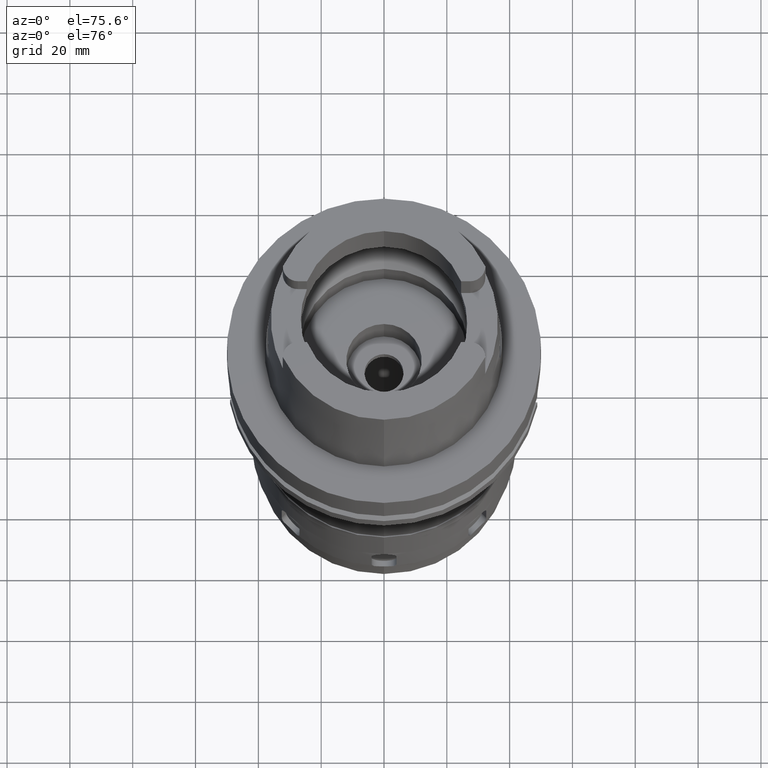
[diagram: clean part render]
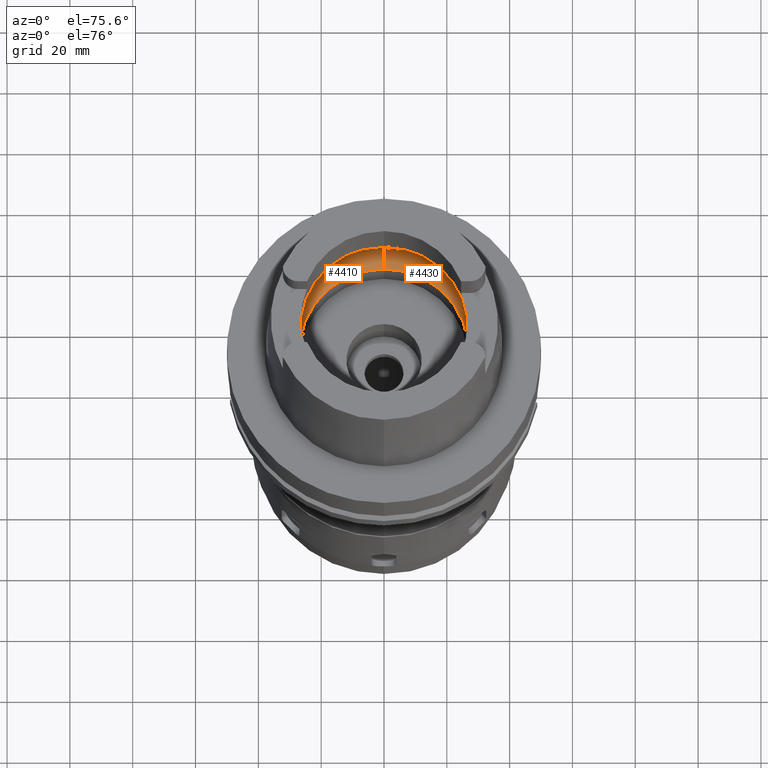
[diagram: same view with one multi-face feature highlighted, each face labeled with its STEP entity id]
A machine part, auxiliary view. The highlighted faces form ONE feature: a constant-radius fillet chain: 2 tangent blend faces with common blend radius 12 mm. The faces share edges in the B-rep.
Their STEP definitions:
[1] entity #4410 (Torus):
#558=CARTESIAN_POINT('',(-3.140918884336E1,-2.390158196044E0,9.496624327026E0));
#602=CARTESIAN_POINT('',(-3.140918884336E1,-2.390158196044E0,9.496624327026E0));
#603=CARTESIAN_POINT('',(-3.142817545704E1,-2.140654152533E0,9.388262810390E0));
#604=CARTESIAN_POINT('',(-3.145843235401E1,-1.626121130666E0,9.205188134635E0));
#605=CARTESIAN_POINT('',(-3.148416659375E1,-8.216262390445E-1,
9.037606438216E0));
#606=CARTESIAN_POINT('',(-3.148971910754E1,-2.740811097498E-1,9.E0));
#607=CARTESIAN_POINT('',(-3.148971910754E1,0.E0,9.E0));
#612=CARTESIAN_POINT('',(-3.148971910754E1,0.E0,9.E0));
#613=CARTESIAN_POINT('',(-3.148971910754E1,2.740813517952E-1,9.E0));
#614=CARTESIAN_POINT('',(-3.148416661469E1,8.216269012394E-1,9.037606318337E0));
#615=CARTESIAN_POINT('',(-3.145843209623E1,1.626127188331E0,9.205189758010E0));
#616=CARTESIAN_POINT('',(-3.142817526839E1,2.140656631637E0,9.388263887083E0));
#617=CARTESIAN_POINT('',(-3.140918884336E1,2.390158196044E0,9.496624327026E0));
#622=CARTESIAN_POINT('',(0.E0,0.E0,9.496624327026E0));
#623=DIRECTION('',(0.E0,0.E0,-1.E0));
#624=DIRECTION('',(-9.971171061384E-1,7.587803796965E-2,0.E0));
#625=AXIS2_PLACEMENT_3D('',#622,#623,#624);
#630=CARTESIAN_POINT('',(0.E0,0.E0,4.993178413027E-2));
#631=DIRECTION('',(0.E0,0.E0,1.E0));
#632=DIRECTION('',(0.E0,1.E0,0.E0));
#633=AXIS2_PLACEMENT_3D('',#630,#631,#632);
#638=CARTESIAN_POINT('',(0.E0,-1.95E1,9.496624327026E0));
#639=DIRECTION('',(-1.E0,0.E0,0.E0));
#640=DIRECTION('',(0.E0,-6.166666666667E-1,-7.872243785746E-1));
#641=AXIS2_PLACEMENT_3D('',#638,#639,#640);
#646=CARTESIAN_POINT('',(0.E0,0.E0,9.496624327026E0));
#647=DIRECTION('',(0.E0,0.E0,-1.E0));
#648=DIRECTION('',(0.E0,-1.E0,0.E0));
#649=AXIS2_PLACEMENT_3D('',#646,#647,#648);
#680=CARTESIAN_POINT('',(0.E0,1.95E1,9.496624327026E0));
#681=DIRECTION('',(1.E0,0.E0,0.E0));
#682=DIRECTION('',(0.E0,6.166666666667E-1,-7.872243785746E-1));
#683=AXIS2_PLACEMENT_3D('',#680,#681,#682);
#3594=VERTEX_POINT('',#558);
#3595=CARTESIAN_POINT('',(0.E0,-3.15E1,9.496624327026E0));
#3596=VERTEX_POINT('',#3595);
#3597=CARTESIAN_POINT('',(0.E0,3.15E1,9.496624327026E0));
#3598=VERTEX_POINT('',#3597);
#3599=CARTESIAN_POINT('',(-3.140918884336E1,2.390158196044E0,9.496624327026E0));
#3600=VERTEX_POINT('',#3599);
#3601=CARTESIAN_POINT('',(-3.148971910754E1,0.E0,9.E0));
#3602=VERTEX_POINT('',#3601);
#3607=CARTESIAN_POINT('',(0.E0,2.69E1,4.993178413027E-2));
#3608=VERTEX_POINT('',#3607);
#3609=CARTESIAN_POINT('',(0.E0,-2.69E1,4.993178413027E-2));
#3610=VERTEX_POINT('',#3609);
#4393=CARTESIAN_POINT('',(0.E0,0.E0,9.496624327026E0));
#4394=DIRECTION('',(0.E0,0.E0,1.E0));
#4395=DIRECTION('',(0.E0,1.E0,0.E0));
#4396=AXIS2_PLACEMENT_3D('',#4393,#4394,#4395);
#4397=TOROIDAL_SURFACE('',#4396,1.95E1,1.2E1);
#4398=ORIENTED_EDGE('',*,*,#4374,.T.);
#4399=ORIENTED_EDGE('',*,*,#4385,.T.);
#4400=ORIENTED_EDGE('',*,*,#4356,.T.);
#4402=ORIENTED_EDGE('',*,*,#4401,.F.);
#4404=ORIENTED_EDGE('',*,*,#4403,.T.);
#4406=ORIENTED_EDGE('',*,*,#4405,.T.);
#4407=ORIENTED_EDGE('',*,*,#4349,.T.);
#4408=EDGE_LOOP('',(#4398,#4399,#4400,#4402,#4404,#4406,#4407));
#4409=FACE_OUTER_BOUND('',#4408,.F.);
#608=B_SPLINE_CURVE_WITH_KNOTS('',3,(#602,#603,#604,#605,#606,#607),
.UNSPECIFIED.,.F.,.F.,(4,1,1,4),(0.E0,3.333333333333E-1,6.666666666667E-1,1.E0),
.UNSPECIFIED.);
#618=B_SPLINE_CURVE_WITH_KNOTS('',3,(#612,#613,#614,#615,#616,#617),
.UNSPECIFIED.,.F.,.F.,(4,1,1,4),(0.E0,3.333333333333E-1,6.666666666667E-1,1.E0),
.UNSPECIFIED.);
#626=CIRCLE('',#625,3.15E1);
#634=CIRCLE('',#633,2.69E1);
#642=CIRCLE('',#641,1.2E1);
#650=CIRCLE('',#649,3.15E1);
#684=CIRCLE('',#683,1.2E1);
#4349=EDGE_CURVE('',#3596,#3594,#650,.T.);
#4356=EDGE_CURVE('',#3600,#3598,#626,.T.);
#4374=EDGE_CURVE('',#3594,#3602,#608,.T.);
#4385=EDGE_CURVE('',#3602,#3600,#618,.T.);
#4401=EDGE_CURVE('',#3608,#3598,#684,.T.);
#4403=EDGE_CURVE('',#3608,#3610,#634,.T.);
#4405=EDGE_CURVE('',#3610,#3596,#642,.T.);
#4410=ADVANCED_FACE('',(#4409),#4397,.F.);
[2] entity #4430 (Torus):
#638=CARTESIAN_POINT('',(0.E0,-1.95E1,9.496624327026E0));
#639=DIRECTION('',(-1.E0,0.E0,0.E0));
#640=DIRECTION('',(0.E0,-6.166666666667E-1,-7.872243785746E-1));
#641=AXIS2_PLACEMENT_3D('',#638,#639,#640);
#654=CARTESIAN_POINT('',(3.148971910754E1,0.E0,9.E0));
#655=CARTESIAN_POINT('',(3.148971910754E1,-2.740816369241E-1,9.E0));
#656=CARTESIAN_POINT('',(3.148416657244E1,-8.216274657312E-1,9.037606582852E0));
#657=CARTESIAN_POINT('',(3.145843229729E1,-1.626122314408E0,9.205188491873E0));
#658=CARTESIAN_POINT('',(3.142817542026E1,-2.140654635827E0,9.388263020288E0));
#659=CARTESIAN_POINT('',(3.140918884336E1,-2.390158196044E0,9.496624327026E0));
#664=CARTESIAN_POINT('',(0.E0,0.E0,9.496624327026E0));
#665=DIRECTION('',(0.E0,0.E0,-1.E0));
#666=DIRECTION('',(9.971171061384E-1,-7.587803796965E-2,0.E0));
#667=AXIS2_PLACEMENT_3D('',#664,#665,#666);
#672=CARTESIAN_POINT('',(0.E0,0.E0,4.993178413027E-2));
#673=DIRECTION('',(0.E0,0.E0,1.E0));
#674=DIRECTION('',(0.E0,-1.E0,0.E0));
#675=AXIS2_PLACEMENT_3D('',#672,#673,#674);
#680=CARTESIAN_POINT('',(0.E0,1.95E1,9.496624327026E0));
#681=DIRECTION('',(1.E0,0.E0,0.E0));
#682=DIRECTION('',(0.E0,6.166666666667E-1,-7.872243785746E-1));
#683=AXIS2_PLACEMENT_3D('',#680,#681,#682);
#688=CARTESIAN_POINT('',(0.E0,0.E0,9.496624327026E0));
#689=DIRECTION('',(0.E0,0.E0,-1.E0));
#690=DIRECTION('',(0.E0,1.E0,0.E0));
#691=AXIS2_PLACEMENT_3D('',#688,#689,#690);
#696=CARTESIAN_POINT('',(3.140918884336E1,2.390158196044E0,9.496624327026E0));
#697=CARTESIAN_POINT('',(3.142817530553E1,2.140656143518E0,9.388263675090E0));
#698=CARTESIAN_POINT('',(3.145843215351E1,1.626125992770E0,9.205189397203E0));
#699=CARTESIAN_POINT('',(3.148416663622E1,8.216256622719E-1,9.037606172252E0));
#700=CARTESIAN_POINT('',(3.148971910754E1,2.740808193429E-1,9.E0));
#701=CARTESIAN_POINT('',(3.148971910754E1,0.E0,9.E0));
#713=CARTESIAN_POINT('',(3.140918884336E1,-2.390158196044E0,9.496624327026E0));
#744=CARTESIAN_POINT('',(3.140918884336E1,2.390158196044E0,9.496624327026E0));
#3595=CARTESIAN_POINT('',(0.E0,-3.15E1,9.496624327026E0));
#3596=VERTEX_POINT('',#3595);
#3597=CARTESIAN_POINT('',(0.E0,3.15E1,9.496624327026E0));
#3598=VERTEX_POINT('',#3597);
#3603=VERTEX_POINT('',#713);
#3605=VERTEX_POINT('',#654);
#3606=VERTEX_POINT('',#744);
#3607=CARTESIAN_POINT('',(0.E0,2.69E1,4.993178413027E-2));
#3608=VERTEX_POINT('',#3607);
#3609=CARTESIAN_POINT('',(0.E0,-2.69E1,4.993178413027E-2));
#3610=VERTEX_POINT('',#3609);
#4411=CARTESIAN_POINT('',(0.E0,0.E0,9.496624327026E0));
#4412=DIRECTION('',(0.E0,0.E0,1.E0));
#4413=DIRECTION('',(0.E0,1.E0,0.E0));
#4414=AXIS2_PLACEMENT_3D('',#4411,#4412,#4413);
#4415=TOROIDAL_SURFACE('',#4414,1.95E1,1.2E1);
#4417=ORIENTED_EDGE('',*,*,#4416,.T.);
#4419=ORIENTED_EDGE('',*,*,#4418,.T.);
#4420=ORIENTED_EDGE('',*,*,#4405,.F.);
#4422=ORIENTED_EDGE('',*,*,#4421,.T.);
#4423=ORIENTED_EDGE('',*,*,#4401,.T.);
#4425=ORIENTED_EDGE('',*,*,#4424,.T.);
#4427=ORIENTED_EDGE('',*,*,#4426,.T.);
#4428=EDGE_LOOP('',(#4417,#4419,#4420,#4422,#4423,#4425,#4427));
#4429=FACE_OUTER_BOUND('',#4428,.F.);
#642=CIRCLE('',#641,1.2E1);
#660=B_SPLINE_CURVE_WITH_KNOTS('',3,(#654,#655,#656,#657,#658,#659),
.UNSPECIFIED.,.F.,.F.,(4,1,1,4),(0.E0,3.333333333333E-1,6.666666666667E-1,1.E0),
.UNSPECIFIED.);
#668=CIRCLE('',#667,3.15E1);
#676=CIRCLE('',#675,2.69E1);
#684=CIRCLE('',#683,1.2E1);
#692=CIRCLE('',#691,3.15E1);
#702=B_SPLINE_CURVE_WITH_KNOTS('',3,(#696,#697,#698,#699,#700,#701),
.UNSPECIFIED.,.F.,.F.,(4,1,1,4),(0.E0,3.333333333333E-1,6.666666666667E-1,1.E0),
.UNSPECIFIED.);
#4401=EDGE_CURVE('',#3608,#3598,#684,.T.);
#4405=EDGE_CURVE('',#3610,#3596,#642,.T.);
#4416=EDGE_CURVE('',#3605,#3603,#660,.T.);
#4418=EDGE_CURVE('',#3603,#3596,#668,.T.);
#4421=EDGE_CURVE('',#3610,#3608,#676,.T.);
#4424=EDGE_CURVE('',#3598,#3606,#692,.T.);
#4426=EDGE_CURVE('',#3606,#3605,#702,.T.);
#4430=ADVANCED_FACE('',(#4429),#4415,.F.);